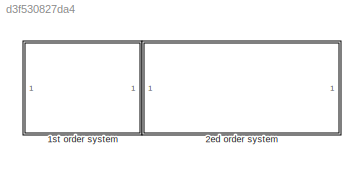
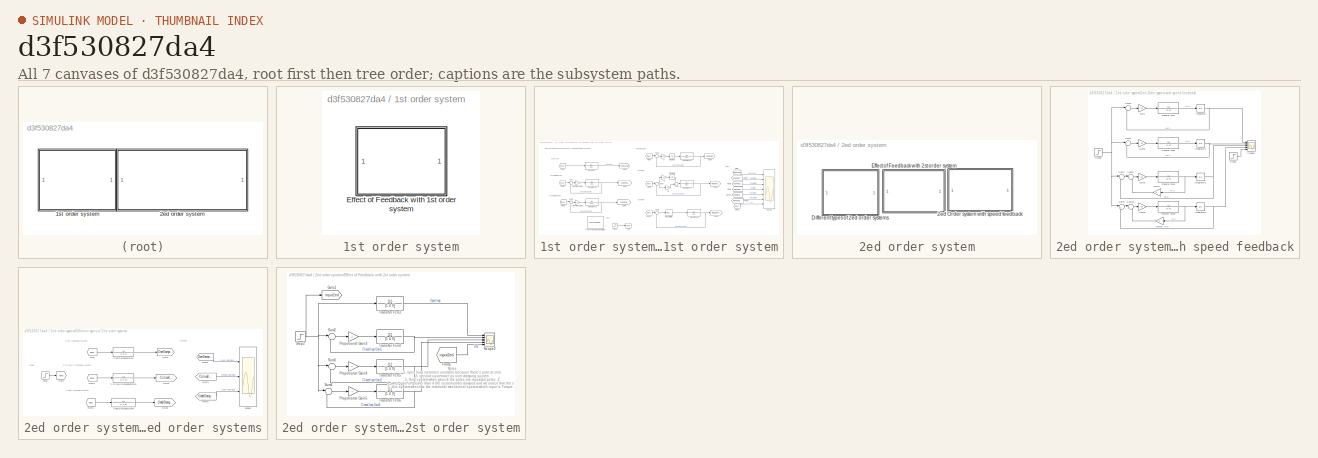
[diagram: thumbnail index - all 7 canvases of the model, root first then tree order]
MODEL slx_d3f530827da4
KIND model
CONFIG AbsTol = auto
CONFIG EnableMultiTasking = off
CONFIG FixedStep = auto
CONFIG MaxStep = 10e-3
CONFIG MinStep = auto
CONFIG RelTol = 1e-3
CONFIG SampleTimeConstraint = Unconstrained
CONFIG SolverName = VariableStepAuto
CONFIG StartTime = 0.0
CONFIG StopTime = 50
BLOCK [SubSystem] 1st order system
  Ports = []
  RequestExecContextInheritance = off
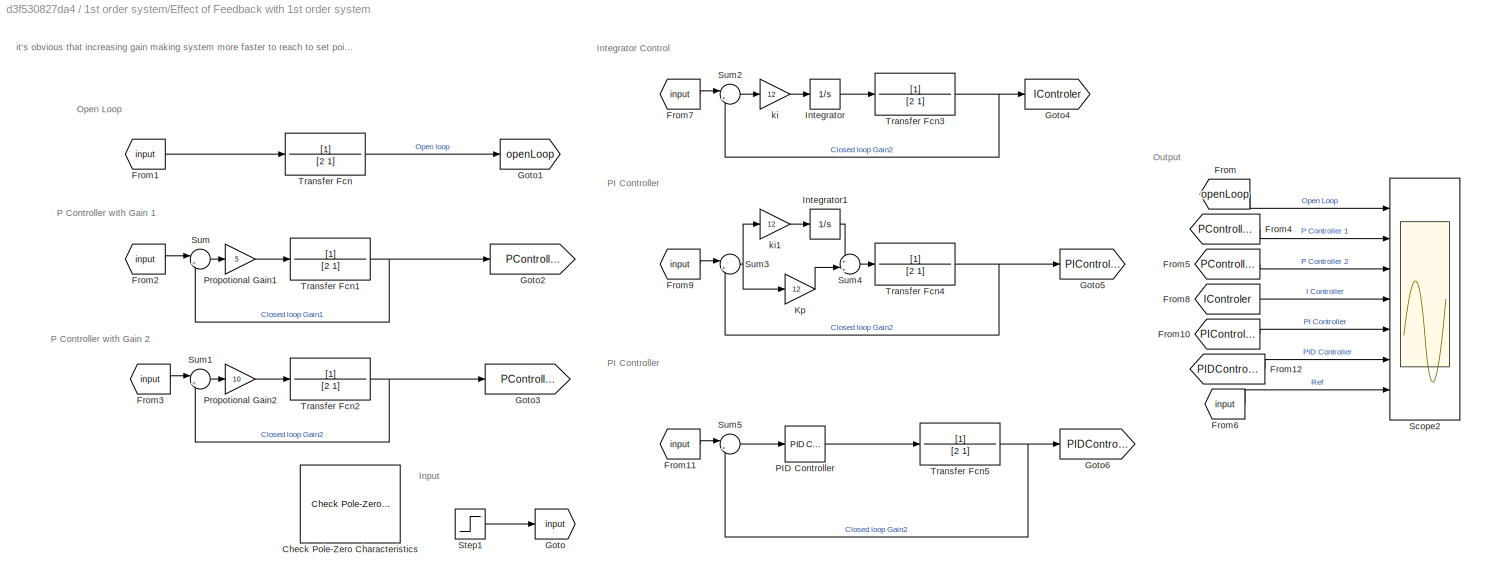
BLOCK [SubSystem] 1st order system/Effect of Feedback with 1st order system
  Ports = []
  RequestExecContextInheritance = off
BLOCK [Reference] 1st order system/Effect of Feedback with 1st order system/Check Pole-Zero Characteristics  REF=slctrlblks/Model Verification/Check Pole-Zero
Characteristics
  InstantiateOnLoad = on
  Ports = []
  SourceBlock = slctrlblks/Model Verification/Check Pole-Zero\nCharacteristics
  SourceProductBaseCode = SD
  SourceType = Checks_PZMap
BLOCK [From] 1st order system/Effect of Feedback with 1st order system/From
  GotoTag = openLoop
BLOCK [From] 1st order system/Effect of Feedback with 1st order system/From1
  GotoTag = input
BLOCK [From] 1st order system/Effect of Feedback with 1st order system/From10
  GotoTag = PIController
BLOCK [From] 1st order system/Effect of Feedback with 1st order system/From11
  GotoTag = input
BLOCK [From] 1st order system/Effect of Feedback with 1st order system/From12
  GotoTag = PIDController
BLOCK [From] 1st order system/Effect of Feedback with 1st order system/From2
  GotoTag = input
BLOCK [From] 1st order system/Effect of Feedback with 1st order system/From3
  GotoTag = input
BLOCK [From] 1st order system/Effect of Feedback with 1st order system/From4
  GotoTag = PController1
BLOCK [From] 1st order system/Effect of Feedback with 1st order system/From5
  GotoTag = PController2
BLOCK [From] 1st order system/Effect of Feedback with 1st order system/From6
  GotoTag = input
BLOCK [From] 1st order system/Effect of Feedback with 1st order system/From7
  GotoTag = input
BLOCK [From] 1st order system/Effect of Feedback with 1st order system/From8
  GotoTag = IControler
BLOCK [From] 1st order system/Effect of Feedback with 1st order system/From9
  GotoTag = input
BLOCK [Goto] 1st order system/Effect of Feedback with 1st order system/Goto
  GotoTag = input
BLOCK [Goto] 1st order system/Effect of Feedback with 1st order system/Goto1
  GotoTag = openLoop
BLOCK [Goto] 1st order system/Effect of Feedback with 1st order system/Goto2
  GotoTag = PController1
BLOCK [Goto] 1st order system/Effect of Feedback with 1st order system/Goto3
  GotoTag = PController2
BLOCK [Goto] 1st order system/Effect of Feedback with 1st order system/Goto4
  GotoTag = IControler
BLOCK [Goto] 1st order system/Effect of Feedback with 1st order system/Goto5
  GotoTag = PIController
BLOCK [Goto] 1st order system/Effect of Feedback with 1st order system/Goto6
  GotoTag = PIDController
BLOCK [Integrator] 1st order system/Effect of Feedback with 1st order system/Integrator
  Ports = [1, 1]
BLOCK [Integrator] 1st order system/Effect of Feedback with 1st order system/Integrator1
  Ports = [1, 1]
BLOCK [Gain] 1st order system/Effect of Feedback with 1st order system/Kp
  Gain = 12
BLOCK [Reference] 1st order system/Effect of Feedback with 1st order system/PID Controller  REF=pid_lib/PID Controller
  Ports = [1, 1]
  SourceBlock = pid_lib/PID Controller
  SourceProductBaseCode = SL
  SourceType = PID 1dof
BLOCK [Gain] 1st order system/Effect of Feedback with 1st order system/Propotional Gain1
  Gain = 5
BLOCK [Gain] 1st order system/Effect of Feedback with 1st order system/Propotional Gain2
  Gain = 10
BLOCK [Scope] 1st order system/Effect of Feedback with 1st order system/Scope2
  Floating = off
  NumInputPorts = 7
  Ports = [7]
  ScopeSpecificationString = Simulink.scopes.TimeScopeBlockCfg('CurrentConfiguration', extmgr.ConfigurationSet(extmgr.Configuration('Core','General UI',true),extmgr.Configuration('Core','Source UI',true),extmgr.Configuration('Sources','WiredSimulink',true,'DataLoggingVariableName','ScopeData1'),extmgr.Configuration('Visuals','Time Domain',true,'SerializedDisplays',{struct('MinYLimReal','-0.21556','MaxYLimReal','1.94002','YLab...<+1978ch>
BLOCK [Step] 1st order system/Effect of Feedback with 1st order system/Step1
  SampleTime = 0
BLOCK [Sum] 1st order system/Effect of Feedback with 1st order system/Sum
  Inputs = |+-
  Ports = [2, 1]
BLOCK [Sum] 1st order system/Effect of Feedback with 1st order system/Sum1
  Inputs = |+-
  Ports = [2, 1]
BLOCK [Sum] 1st order system/Effect of Feedback with 1st order system/Sum2
  Inputs = |+-
  Ports = [2, 1]
BLOCK [Sum] 1st order system/Effect of Feedback with 1st order system/Sum3
  Inputs = |+-
  Ports = [2, 1]
BLOCK [Sum] 1st order system/Effect of Feedback with 1st order system/Sum4
  Inputs = +|+
  Ports = [2, 1]
BLOCK [Sum] 1st order system/Effect of Feedback with 1st order system/Sum5
  Inputs = |+-
  Ports = [2, 1]
BLOCK [TransferFcn] 1st order system/Effect of Feedback with 1st order system/Transfer Fcn
  Denominator = [2 1]
BLOCK [TransferFcn] 1st order system/Effect of Feedback with 1st order system/Transfer Fcn1
  Denominator = [2 1]
BLOCK [TransferFcn] 1st order system/Effect of Feedback with 1st order system/Transfer Fcn2
  Denominator = [2 1]
BLOCK [TransferFcn] 1st order system/Effect of Feedback with 1st order system/Transfer Fcn3
  Denominator = [2 1]
BLOCK [TransferFcn] 1st order system/Effect of Feedback with 1st order system/Transfer Fcn4
  Denominator = [2 1]
BLOCK [TransferFcn] 1st order system/Effect of Feedback with 1st order system/Transfer Fcn5
  Denominator = [2 1]
BLOCK [Gain] 1st order system/Effect of Feedback with 1st order system/ki
  Gain = 12
BLOCK [Gain] 1st order system/Effect of Feedback with 1st order system/ki1
  Gain = 12
BLOCK [SubSystem] 2ed order system
  Ports = []
  RequestExecContextInheritance = off
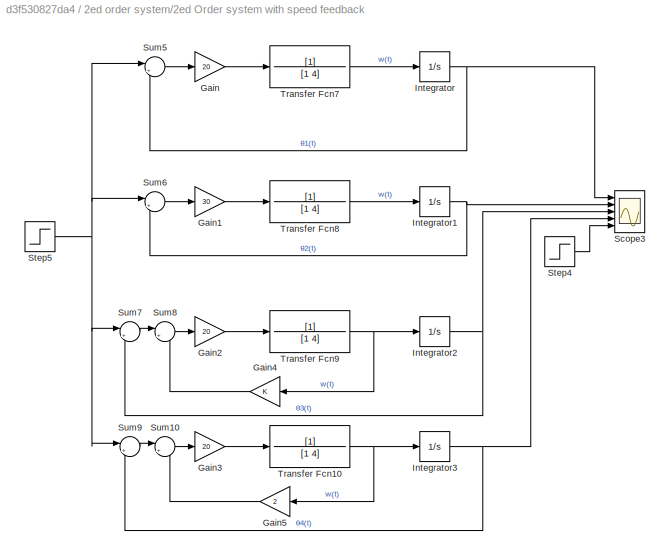
BLOCK [SubSystem] 2ed order system/2ed Order system with speed feedback
  Ports = []
  RequestExecContextInheritance = off
BLOCK [Gain] 2ed order system/2ed Order system with speed feedback/Gain
  Gain = 20
BLOCK [Gain] 2ed order system/2ed Order system with speed feedback/Gain1
  Gain = 30
BLOCK [Gain] 2ed order system/2ed Order system with speed feedback/Gain2
  Gain = 20
BLOCK [Gain] 2ed order system/2ed Order system with speed feedback/Gain3
  Gain = 20
BLOCK [Gain] 2ed order system/2ed Order system with speed feedback/Gain4
BLOCK [Gain] 2ed order system/2ed Order system with speed feedback/Gain5
  Gain = 2
BLOCK [Integrator] 2ed order system/2ed Order system with speed feedback/Integrator
  Ports = [1, 1]
BLOCK [Integrator] 2ed order system/2ed Order system with speed feedback/Integrator1
  Ports = [1, 1]
BLOCK [Integrator] 2ed order system/2ed Order system with speed feedback/Integrator2
  Ports = [1, 1]
BLOCK [Integrator] 2ed order system/2ed Order system with speed feedback/Integrator3
  Ports = [1, 1]
BLOCK [Scope] 2ed order system/2ed Order system with speed feedback/Scope3
  Floating = off
  NumInputPorts = 5
  Ports = [5]
  ScopeSpecificationString = Simulink.scopes.TimeScopeBlockCfg('CurrentConfiguration', extmgr.ConfigurationSet(extmgr.Configuration('Core','General UI',true),extmgr.Configuration('Core','Source UI',true),extmgr.Configuration('Sources','WiredSimulink',true,'DataLoggingVariableName','ScopeData3'),extmgr.Configuration('Visuals','Time Domain',true,'SerializedDisplays',{struct('MinYLimReal','-0.16145','MaxYLimReal','1.45302','YLab...<+1632ch>
BLOCK [Step] 2ed order system/2ed Order system with speed feedback/Step4
  SampleTime = 0
BLOCK [Step] 2ed order system/2ed Order system with speed feedback/Step5
  SampleTime = 0
BLOCK [Sum] 2ed order system/2ed Order system with speed feedback/Sum10
  Inputs = |+-
  Ports = [2, 1]
BLOCK [Sum] 2ed order system/2ed Order system with speed feedback/Sum5
  Inputs = |+-
  Ports = [2, 1]
BLOCK [Sum] 2ed order system/2ed Order system with speed feedback/Sum6
  Inputs = |+-
  Ports = [2, 1]
BLOCK [Sum] 2ed order system/2ed Order system with speed feedback/Sum7
  Inputs = |+-
  Ports = [2, 1]
BLOCK [Sum] 2ed order system/2ed Order system with speed feedback/Sum8
  Inputs = |+-
  Ports = [2, 1]
BLOCK [Sum] 2ed order system/2ed Order system with speed feedback/Sum9
  Inputs = |+-
  Ports = [2, 1]
BLOCK [TransferFcn] 2ed order system/2ed Order system with speed feedback/Transfer Fcn10
  Denominator = [1 4]
BLOCK [TransferFcn] 2ed order system/2ed Order system with speed feedback/Transfer Fcn7
  Denominator = [1 4]
BLOCK [TransferFcn] 2ed order system/2ed Order system with speed feedback/Transfer Fcn8
  Denominator = [1 4]
BLOCK [TransferFcn] 2ed order system/2ed Order system with speed feedback/Transfer Fcn9
  Denominator = [1 4]
BLOCK [SubSystem] 2ed order system/Different types of 2ed order systems
  Ports = []
  RequestExecContextInheritance = off
BLOCK [TransferFcn] 2ed order system/Different types of 2ed order systems/CriticallyDampedSystem
  Denominator = [1 4 4]
BLOCK [From] 2ed order system/Different types of 2ed order systems/From
  GotoTag = input
BLOCK [From] 2ed order system/Different types of 2ed order systems/From1
  GotoTag = input
BLOCK [From] 2ed order system/Different types of 2ed order systems/From2
  GotoTag = input
BLOCK [From] 2ed order system/Different types of 2ed order systems/From3
  GotoTag = OverDamping
BLOCK [From] 2ed order system/Different types of 2ed order systems/From4
  GotoTag = CriticallyDamping
BLOCK [From] 2ed order system/Different types of 2ed order systems/From5
  GotoTag = UnderDamping
BLOCK [Goto] 2ed order system/Different types of 2ed order systems/Goto
  GotoTag = input
BLOCK [Goto] 2ed order system/Different types of 2ed order systems/Goto1
  GotoTag = OverDamping
BLOCK [Goto] 2ed order system/Different types of 2ed order systems/Goto2
  GotoTag = CriticallyDamping
BLOCK [Goto] 2ed order system/Different types of 2ed order systems/Goto3
  GotoTag = UnderDamping
BLOCK [TransferFcn] 2ed order system/Different types of 2ed order systems/OverDampedSystem
  Denominator = [1 5 4]
BLOCK [Scope] 2ed order system/Different types of 2ed order systems/Scope2
  Floating = off
  NumInputPorts = 3
  Ports = [3]
  ScopeSpecificationString = Simulink.scopes.TimeScopeBlockCfg('CurrentConfiguration', extmgr.ConfigurationSet(extmgr.Configuration('Core','General UI',true),extmgr.Configuration('Core','Source UI',true),extmgr.Configuration('Sources','WiredSimulink',true,'DataLoggingVariableName','ScopeData2'),extmgr.Configuration('Visuals','Time Domain',true,'SerializedDisplays',{struct('MinYLimReal','-0.03634','MaxYLimReal','0.3271','YLabe...<+1926ch>
BLOCK [Step] 2ed order system/Different types of 2ed order systems/Step
  SampleTime = 0
BLOCK [TransferFcn] 2ed order system/Different types of 2ed order systems/UnderDampedSystem
  Denominator = [1 2 4]
BLOCK [SubSystem] 2ed order system/Effect of Feedback with 2st order system
  Ports = []
  RequestExecContextInheritance = off
BLOCK [From] 2ed order system/Effect of Feedback with 2st order system/From1
  GotoTag = input2ed
BLOCK [Goto] 2ed order system/Effect of Feedback with 2st order system/Goto1
  GotoTag = input2ed
BLOCK [Gain] 2ed order system/Effect of Feedback with 2st order system/Propotional Gain3
  Gain = 3
BLOCK [Gain] 2ed order system/Effect of Feedback with 2st order system/Propotional Gain4
  Gain = 4
BLOCK [Gain] 2ed order system/Effect of Feedback with 2st order system/Propotional Gain5
  Gain = 7
BLOCK [Scope] 2ed order system/Effect of Feedback with 2st order system/Scope2
  Floating = off
  NumInputPorts = 5
  Ports = [5]
  ScopeSpecificationString = Simulink.scopes.TimeScopeBlockCfg('CurrentConfiguration', extmgr.ConfigurationSet(extmgr.Configuration('Core','General UI',true),extmgr.Configuration('Core','Source UI',true),extmgr.Configuration('Sources','WiredSimulink',true,'DataLoggingVariableName','ScopeData2'),extmgr.Configuration('Visuals','Time Domain',true,'SerializedDisplays',{struct('MinYLimReal','-0.27344','MaxYLimReal','2.46094','YLab...<+1673ch>
BLOCK [Step] 2ed order system/Effect of Feedback with 2st order system/Step2
  SampleTime = 0
BLOCK [Sum] 2ed order system/Effect of Feedback with 2st order system/Sum2
  Inputs = |+-
  Ports = [2, 1]
BLOCK [Sum] 2ed order system/Effect of Feedback with 2st order system/Sum3
  Inputs = |+-
  Ports = [2, 1]
BLOCK [Sum] 2ed order system/Effect of Feedback with 2st order system/Sum4
  Inputs = |+-
  Ports = [2, 1]
BLOCK [TransferFcn] 2ed order system/Effect of Feedback with 2st order system/Transfer Fcn3
  Denominator = [1 4 0]
BLOCK [TransferFcn] 2ed order system/Effect of Feedback with 2st order system/Transfer Fcn4
  Denominator = [1 4 0]
BLOCK [TransferFcn] 2ed order system/Effect of Feedback with 2st order system/Transfer Fcn5
  Denominator = [1 4 0]
BLOCK [TransferFcn] 2ed order system/Effect of Feedback with 2st order system/Transfer Fcn6
  Denominator = [1 4 0]
ANNOTATION 1st order system/Effect of Feedback with 1st order system: it's obvious that increasing gain making system more faster to reach to set point and steady state error decrease
ANNOTATION 1st order system/Effect of Feedback with 1st order system: Input
ANNOTATION 1st order system/Effect of Feedback with 1st order system: Integrator Control
ANNOTATION 1st order system/Effect of Feedback with 1st order system: Open Loop
ANNOTATION 1st order system/Effect of Feedback with 1st order system: Output
ANNOTATION 1st order system/Effect of Feedback with 1st order system: P Controller with Gain 1
ANNOTATION 1st order system/Effect of Feedback with 1st order system: P Controller with Gain 2
ANNOTATION 1st order system/Effect of Feedback with 1st order system: PI Controller
ANNOTATION 2ed order system/Different types of 2ed order systems: Critically Damped system
ANNOTATION 2ed order system/Different types of 2ed order systems: Input
ANNOTATION 2ed order system/Different types of 2ed order systems: Output
ANNOTATION 2ed order system/Different types of 2ed order systems: Over Damped system
ANNOTATION 2ed order system/Different types of 2ed order systems: Under Damped system
ANNOTATION 2ed order system/Effect of Feedback with 2st order system: Notes 1- open loop system is unstable because there's pole at zero 2- second system act as over damping system 3- third system when gain=4 the poles are repeated poles -2 4- when gain is greater than 4 the system under damped and we notice that the system get overshoot 5- this system describe the rotational mechaincal system which input is Torque and output is postion
LINE 1st order system/Effect of Feedback with 1st order system/From10:1 -> 1st order system/Effect of Feedback with 1st order system/Scope2:5
LINE 1st order system/Effect of Feedback with 1st order system/From11:1 -> 1st order system/Effect of Feedback with 1st order system/Sum5:1
LINE 1st order system/Effect of Feedback with 1st order system/From12:1 -> 1st order system/Effect of Feedback with 1st order system/Scope2:6
LINE 1st order system/Effect of Feedback with 1st order system/From1:1 -> 1st order system/Effect of Feedback with 1st order system/Transfer Fcn:1
LINE 1st order system/Effect of Feedback with 1st order system/From2:1 -> 1st order system/Effect of Feedback with 1st order system/Sum:1
LINE 1st order system/Effect of Feedback with 1st order system/From3:1 -> 1st order system/Effect of Feedback with 1st order system/Sum1:1
LINE 1st order system/Effect of Feedback with 1st order system/From4:1 -> 1st order system/Effect of Feedback with 1st order system/Scope2:2
LINE 1st order system/Effect of Feedback with 1st order system/From5:1 -> 1st order system/Effect of Feedback with 1st order system/Scope2:3
LINE 1st order system/Effect of Feedback with 1st order system/From6:1 -> 1st order system/Effect of Feedback with 1st order system/Scope2:7
LINE 1st order system/Effect of Feedback with 1st order system/From7:1 -> 1st order system/Effect of Feedback with 1st order system/Sum2:1
LINE 1st order system/Effect of Feedback with 1st order system/From8:1 -> 1st order system/Effect of Feedback with 1st order system/Scope2:4
LINE 1st order system/Effect of Feedback with 1st order system/From9:1 -> 1st order system/Effect of Feedback with 1st order system/Sum3:1
LINE 1st order system/Effect of Feedback with 1st order system/From:1 -> 1st order system/Effect of Feedback with 1st order system/Scope2:1
LINE 1st order system/Effect of Feedback with 1st order system/Integrator1:1 -> 1st order system/Effect of Feedback with 1st order system/Sum4:1
LINE 1st order system/Effect of Feedback with 1st order system/Integrator:1 -> 1st order system/Effect of Feedback with 1st order system/Transfer Fcn3:1
LINE 1st order system/Effect of Feedback with 1st order system/Kp:1 -> 1st order system/Effect of Feedback with 1st order system/Sum4:2
LINE 1st order system/Effect of Feedback with 1st order system/PID Controller:1 -> 1st order system/Effect of Feedback with 1st order system/Transfer Fcn5:1
LINE 1st order system/Effect of Feedback with 1st order system/Propotional Gain1:1 -> 1st order system/Effect of Feedback with 1st order system/Transfer Fcn1:1
LINE 1st order system/Effect of Feedback with 1st order system/Propotional Gain2:1 -> 1st order system/Effect of Feedback with 1st order system/Transfer Fcn2:1
LINE 1st order system/Effect of Feedback with 1st order system/Step1:1 -> 1st order system/Effect of Feedback with 1st order system/Goto:1
LINE 1st order system/Effect of Feedback with 1st order system/Sum1:1 -> 1st order system/Effect of Feedback with 1st order system/Propotional Gain2:1
LINE 1st order system/Effect of Feedback with 1st order system/Sum2:1 -> 1st order system/Effect of Feedback with 1st order system/ki:1
NET 1st order system/Effect of Feedback with 1st order system/Sum3:1 -> 1st order system/Effect of Feedback with 1st order system/Kp:1, 1st order system/Effect of Feedback with 1st order system/ki1:1
LINE 1st order system/Effect of Feedback with 1st order system/Sum4:1 -> 1st order system/Effect of Feedback with 1st order system/Transfer Fcn4:1
LINE 1st order system/Effect of Feedback with 1st order system/Sum5:1 -> 1st order system/Effect of Feedback with 1st order system/PID Controller:1
LINE 1st order system/Effect of Feedback with 1st order system/Sum:1 -> 1st order system/Effect of Feedback with 1st order system/Propotional Gain1:1
NET 1st order system/Effect of Feedback with 1st order system/Transfer Fcn1:1 -> 1st order system/Effect of Feedback with 1st order system/Goto2:1, 1st order system/Effect of Feedback with 1st order system/Sum:2
NET 1st order system/Effect of Feedback with 1st order system/Transfer Fcn2:1 -> 1st order system/Effect of Feedback with 1st order system/Goto3:1, 1st order system/Effect of Feedback with 1st order system/Sum1:2
NET 1st order system/Effect of Feedback with 1st order system/Transfer Fcn3:1 -> 1st order system/Effect of Feedback with 1st order system/Goto4:1, 1st order system/Effect of Feedback with 1st order system/Sum2:2
NET 1st order system/Effect of Feedback with 1st order system/Transfer Fcn4:1 -> 1st order system/Effect of Feedback with 1st order system/Goto5:1, 1st order system/Effect of Feedback with 1st order system/Sum3:2
NET 1st order system/Effect of Feedback with 1st order system/Transfer Fcn5:1 -> 1st order system/Effect of Feedback with 1st order system/Goto6:1, 1st order system/Effect of Feedback with 1st order system/Sum5:2
LINE 1st order system/Effect of Feedback with 1st order system/Transfer Fcn:1 -> 1st order system/Effect of Feedback with 1st order system/Goto1:1
LINE 1st order system/Effect of Feedback with 1st order system/ki1:1 -> 1st order system/Effect of Feedback with 1st order system/Integrator1:1
LINE 1st order system/Effect of Feedback with 1st order system/ki:1 -> 1st order system/Effect of Feedback with 1st order system/Integrator:1
LINE 2ed order system/2ed Order system with speed feedback/Gain1:1 -> 2ed order system/2ed Order system with speed feedback/Transfer Fcn8:1
LINE 2ed order system/2ed Order system with speed feedback/Gain2:1 -> 2ed order system/2ed Order system with speed feedback/Transfer Fcn9:1
LINE 2ed order system/2ed Order system with speed feedback/Gain3:1 -> 2ed order system/2ed Order system with speed feedback/Transfer Fcn10:1
LINE 2ed order system/2ed Order system with speed feedback/Gain4:1 -> 2ed order system/2ed Order system with speed feedback/Sum8:2
LINE 2ed order system/2ed Order system with speed feedback/Gain5:1 -> 2ed order system/2ed Order system with speed feedback/Sum10:2
LINE 2ed order system/2ed Order system with speed feedback/Gain:1 -> 2ed order system/2ed Order system with speed feedback/Transfer Fcn7:1
NET 2ed order system/2ed Order system with speed feedback/Integrator1:1 -> 2ed order system/2ed Order system with speed feedback/Scope3:2, 2ed order system/2ed Order system with speed feedback/Sum6:2
NET 2ed order system/2ed Order system with speed feedback/Integrator2:1 -> 2ed order system/2ed Order system with speed feedback/Scope3:3, 2ed order system/2ed Order system with speed feedback/Sum7:2
NET 2ed order system/2ed Order system with speed feedback/Integrator3:1 -> 2ed order system/2ed Order system with speed feedback/Scope3:4, 2ed order system/2ed Order system with speed feedback/Sum9:2
NET 2ed order system/2ed Order system with speed feedback/Integrator:1 -> 2ed order system/2ed Order system with speed feedback/Scope3:1, 2ed order system/2ed Order system with speed feedback/Sum5:2
LINE 2ed order system/2ed Order system with speed feedback/Step4:1 -> 2ed order system/2ed Order system with speed feedback/Scope3:5
NET 2ed order system/2ed Order system with speed feedback/Step5:1 -> 2ed order system/2ed Order system with speed feedback/Sum5:1, 2ed order system/2ed Order system with speed feedback/Sum6:1, 2ed order system/2ed Order system with speed feedback/Sum7:1, 2ed order system/2ed Order system with speed feedback/Sum9:1
LINE 2ed order system/2ed Order system with speed feedback/Sum10:1 -> 2ed order system/2ed Order system with speed feedback/Gain3:1
LINE 2ed order system/2ed Order system with speed feedback/Sum5:1 -> 2ed order system/2ed Order system with speed feedback/Gain:1
LINE 2ed order system/2ed Order system with speed feedback/Sum6:1 -> 2ed order system/2ed Order system with speed feedback/Gain1:1
LINE 2ed order system/2ed Order system with speed feedback/Sum7:1 -> 2ed order system/2ed Order system with speed feedback/Sum8:1
LINE 2ed order system/2ed Order system with speed feedback/Sum8:1 -> 2ed order system/2ed Order system with speed feedback/Gain2:1
LINE 2ed order system/2ed Order system with speed feedback/Sum9:1 -> 2ed order system/2ed Order system with speed feedback/Sum10:1
NET 2ed order system/2ed Order system with speed feedback/Transfer Fcn10:1 -> 2ed order system/2ed Order system with speed feedback/Gain5:1, 2ed order system/2ed Order system with speed feedback/Integrator3:1
LINE 2ed order system/2ed Order system with speed feedback/Transfer Fcn7:1 -> 2ed order system/2ed Order system with speed feedback/Integrator:1
LINE 2ed order system/2ed Order system with speed feedback/Transfer Fcn8:1 -> 2ed order system/2ed Order system with speed feedback/Integrator1:1
NET 2ed order system/2ed Order system with speed feedback/Transfer Fcn9:1 -> 2ed order system/2ed Order system with speed feedback/Gain4:1, 2ed order system/2ed Order system with speed feedback/Integrator2:1
LINE 2ed order system/Different types of 2ed order systems/CriticallyDampedSystem:1 -> 2ed order system/Different types of 2ed order systems/Goto2:1
LINE 2ed order system/Different types of 2ed order systems/From1:1 -> 2ed order system/Different types of 2ed order systems/CriticallyDampedSystem:1
LINE 2ed order system/Different types of 2ed order systems/From2:1 -> 2ed order system/Different types of 2ed order systems/UnderDampedSystem:1
LINE 2ed order system/Different types of 2ed order systems/From3:1 -> 2ed order system/Different types of 2ed order systems/Scope2:1
LINE 2ed order system/Different types of 2ed order systems/From4:1 -> 2ed order system/Different types of 2ed order systems/Scope2:2
LINE 2ed order system/Different types of 2ed order systems/From5:1 -> 2ed order system/Different types of 2ed order systems/Scope2:3
LINE 2ed order system/Different types of 2ed order systems/From:1 -> 2ed order system/Different types of 2ed order systems/OverDampedSystem:1
LINE 2ed order system/Different types of 2ed order systems/OverDampedSystem:1 -> 2ed order system/Different types of 2ed order systems/Goto1:1
LINE 2ed order system/Different types of 2ed order systems/Step:1 -> 2ed order system/Different types of 2ed order systems/Goto:1
LINE 2ed order system/Different types of 2ed order systems/UnderDampedSystem:1 -> 2ed order system/Different types of 2ed order systems/Goto3:1
LINE 2ed order system/Effect of Feedback with 2st order system/From1:1 -> 2ed order system/Effect of Feedback with 2st order system/Scope2:5
LINE 2ed order system/Effect of Feedback with 2st order system/Propotional Gain3:1 -> 2ed order system/Effect of Feedback with 2st order system/Transfer Fcn4:1
LINE 2ed order system/Effect of Feedback with 2st order system/Propotional Gain4:1 -> 2ed order system/Effect of Feedback with 2st order system/Transfer Fcn5:1
LINE 2ed order system/Effect of Feedback with 2st order system/Propotional Gain5:1 -> 2ed order system/Effect of Feedback with 2st order system/Transfer Fcn6:1
NET 2ed order system/Effect of Feedback with 2st order system/Step2:1 -> 2ed order system/Effect of Feedback with 2st order system/Goto1:1, 2ed order system/Effect of Feedback with 2st order system/Sum2:1, 2ed order system/Effect of Feedback with 2st order system/Sum3:1, 2ed order system/Effect of Feedback with 2st order system/Sum4:1, 2ed order system/Effect of Feedback with 2st order system/Transfer Fcn3:1
LINE 2ed order system/Effect of Feedback with 2st order system/Sum2:1 -> 2ed order system/Effect of Feedback with 2st order system/Propotional Gain3:1
LINE 2ed order system/Effect of Feedback with 2st order system/Sum3:1 -> 2ed order system/Effect of Feedback with 2st order system/Propotional Gain4:1
LINE 2ed order system/Effect of Feedback with 2st order system/Sum4:1 -> 2ed order system/Effect of Feedback with 2st order system/Propotional Gain5:1
LINE 2ed order system/Effect of Feedback with 2st order system/Transfer Fcn3:1 -> 2ed order system/Effect of Feedback with 2st order system/Scope2:1
NET 2ed order system/Effect of Feedback with 2st order system/Transfer Fcn4:1 -> 2ed order system/Effect of Feedback with 2st order system/Scope2:2, 2ed order system/Effect of Feedback with 2st order system/Sum2:2
NET 2ed order system/Effect of Feedback with 2st order system/Transfer Fcn5:1 -> 2ed order system/Effect of Feedback with 2st order system/Scope2:3, 2ed order system/Effect of Feedback with 2st order system/Sum3:2
NET 2ed order system/Effect of Feedback with 2st order system/Transfer Fcn6:1 -> 2ed order system/Effect of Feedback with 2st order system/Scope2:4, 2ed order system/Effect of Feedback with 2st order system/Sum4:2
note: NET lines group one-source signal fan-out (src -> all destinations, sorted); 1:1 wires keep LINE
